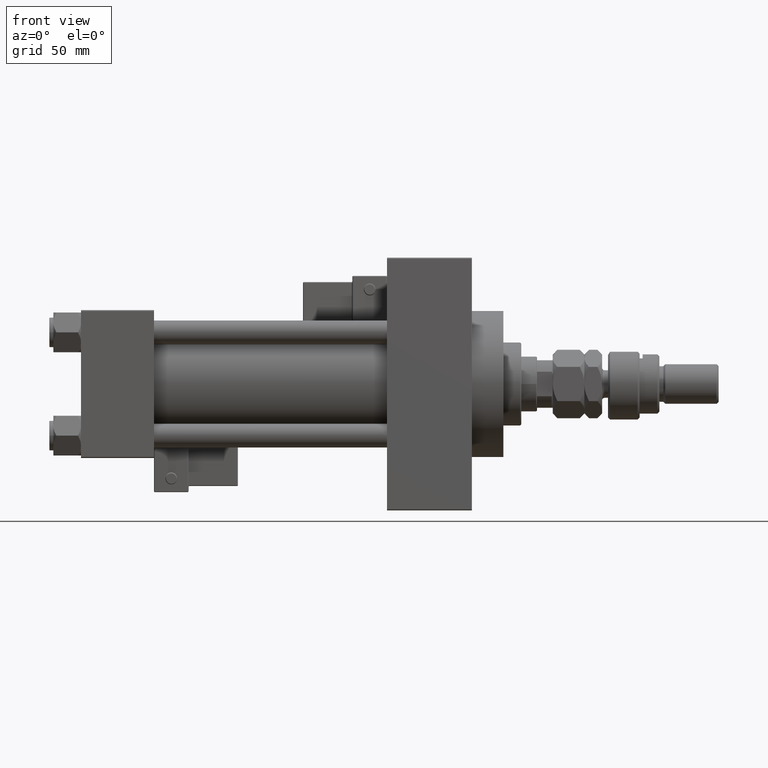
[diagram: clean part render]
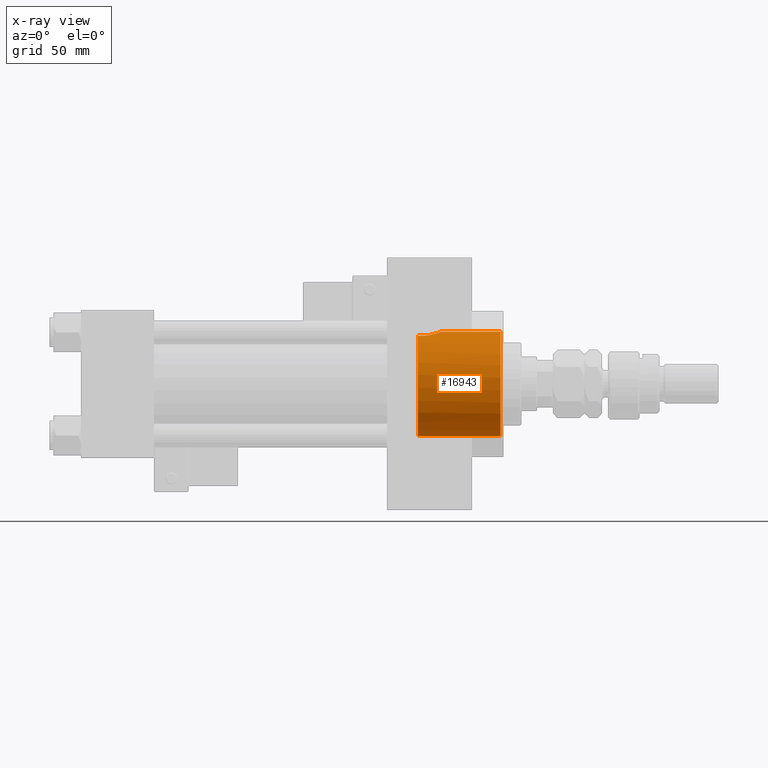
[diagram: x-ray — body ghosted, one internal face saturated and labeled with its STEP entity id]
A machine part, front view, then the same camera in x-ray: the body is ghosted and one INTERNAL B-rep face — a face not visible from any outside direction — is saturated and labeled: STEP entity #16943.
In plain terms, the highlighted cylindrical surface (partial cylindrical patch) has radius 26.5 mm, axis along (1, 0, 0).
Its self-contained STEP definition (entity closure, byte-faithful):
#639 = CARTESIAN_POINT ( 'NONE',  ( 170.7400000000000375, 3.245314017740486554E-15, 26.50000000000000355 ) ) ;
#1493 = DIRECTION ( 'NONE',  ( 0.000000000000000000, 0.000000000000000000, -1.000000000000000000 ) ) ;
#1683 = VECTOR ( 'NONE', #18283, 1000.000000000000000 ) ;
#1844 = CARTESIAN_POINT ( 'NONE',  ( 182.4011065554137758, -1.483758503940585172, 26.46850309434598714 ) ) ;
#2095 = CARTESIAN_POINT ( 'NONE',  ( 178.3983008714430980, -8.308216825530738703, 25.16494175890557017 ) ) ;
#2600 = CARTESIAN_POINT ( 'NONE',  ( 212.5000000000000853, 0.000000000000000000, -26.50000000000000355 ) ) ;
#3208 = ORIENTED_EDGE ( 'NONE', *, *, #35002, .F. ) ;
#6087 = CARTESIAN_POINT ( 'NONE',  ( 170.7400000000000375, -10.40398000767014430, 24.37226292324945476 ) ) ;
#6336 = CARTESIAN_POINT ( 'NONE',  ( 181.3963988635402700, -4.655434592126335147, 26.09007526830298929 ) ) ;
#6568 = CARTESIAN_POINT ( 'NONE',  ( 170.7400000000000375, 0.000000000000000000, -26.50000000000000355 ) ) ;
#6869 = CARTESIAN_POINT ( 'NONE',  ( 173.7216423275559407, -10.36418010715236626, 24.38933169417625990 ) ) ;
#8022 = CARTESIAN_POINT ( 'NONE',  ( 182.4800000000001319, 1.369086091260426415E-14, 26.50000000000006750 ) ) ;
#8075 = DIRECTION ( 'NONE',  ( 1.000000000000000000, -0.000000000000000000, -0.000000000000000000 ) ) ;
#10078 = CARTESIAN_POINT ( 'NONE',  ( 172.2451057705677329, -10.50334255171939901, 24.32972513250578928 ) ) ;
#10577 = CARTESIAN_POINT ( 'NONE',  ( 182.0665133812162821, -2.938253791439155549, 26.33899517628734799 ) ) ;
#11169 = CARTESIAN_POINT ( 'NONE',  ( 212.5000000000000853, 3.245314017740486554E-15, 26.50000000000000355 ) ) ;
#12139 = VERTEX_POINT ( 'NONE', #40055 ) ;
#12553 = B_SPLINE_CURVE_WITH_KNOTS ( 'NONE', 3,
 ( #8022, #19075, #1844, #30507, #10577, #46901, #35255, #6336, #18291, #50639, #31277, #26267, #15099, #46403, #2095, #18043, #27303, #50366, #22549, #50900, #38453, #43205, #6869, #10078, #18563, #6087 ),
 .UNSPECIFIED., .F., .F.,
 ( 4, 2, 2, 2, 2, 2, 2, 2, 2, 2, 2, 2, 4 ),
 ( 0.01781170071191069335, 0.02003745927526334042, 0.02115033855693966569, 0.02226321783861599096, 0.02337609712029231276, 0.02448897640196863804, 0.02671473496532128511, 0.02782761424699763814, 0.02894049352867399116, 0.03005337281035034419, 0.03116625209202669722, 0.03339201065537940327, 0.03561776921873211627 ),
 .UNSPECIFIED. ) ;
#12759 = CARTESIAN_POINT ( 'NONE',  ( 170.7400000000000375, 0.000000000000000000, 0.000000000000000000 ) ) ;
#12866 = EDGE_CURVE ( 'NONE', #45082, #22872, #32199, .T. ) ;
#13429 = EDGE_CURVE ( 'NONE', #33176, #26176, #17811, .T. ) ;
#15099 = CARTESIAN_POINT ( 'NONE',  ( 179.5076201536012377, -7.348534936426533548, 25.46581292754185100 ) ) ;
#16066 = EDGE_CURVE ( 'NONE', #22872, #26176, #27031, .T. ) ;
#16943 = ADVANCED_FACE ( 'NONE', ( #49064 ), #45084, .F. ) ;
#17811 = CIRCLE ( 'NONE', #24597, 26.50000000000000355 ) ;
#18043 = CARTESIAN_POINT ( 'NONE',  ( 177.8022832347253939, -8.734885810676990658, 25.02004257437575063 ) ) ;
#18283 = DIRECTION ( 'NONE',  ( 1.000000000000000000, -0.000000000000000000, -0.000000000000000000 ) ) ;
#18291 = CARTESIAN_POINT ( 'NONE',  ( 181.2276638786152319, -4.981583166679941499, 26.02957788900646108 ) ) ;
#18563 = CARTESIAN_POINT ( 'NONE',  ( 171.4868983507928135, -10.49443499905853905, 24.33364968799253347 ) ) ;
#19075 = CARTESIAN_POINT ( 'NONE',  ( 182.4800000000000182, -0.7466733969459918852, 26.50000000000001776 ) ) ;
#20249 = ORIENTED_EDGE ( 'NONE', *, *, #13429, .T. ) ;
#22549 = CARTESIAN_POINT ( 'NONE',  ( 176.5335921408433535, -9.455792512420336138, 24.75606841526505875 ) ) ;
#22872 = VERTEX_POINT ( 'NONE', #6568 ) ;
#23759 = AXIS2_PLACEMENT_3D ( 'NONE', #29035, #25321, #41493 ) ;
#24597 = AXIS2_PLACEMENT_3D ( 'NONE', #45798, #49770, #1493 ) ;
#25066 = LINE ( 'NONE', #639, #51450 ) ;
#25321 = DIRECTION ( 'NONE',  ( 1.000000000000000000, 0.000000000000000000, 0.000000000000000000 ) ) ;
#26176 = VERTEX_POINT ( 'NONE', #2600 ) ;
#26267 = CARTESIAN_POINT ( 'NONE',  ( 179.9981355541606547, -6.811571481472467937, 25.61680511670813942 ) ) ;
#27031 = LINE ( 'NONE', #38966, #1683 ) ;
#27303 = CARTESIAN_POINT ( 'NONE',  ( 177.4947120380321337, -8.931495953537138988, 24.95025484238639990 ) ) ;
#28153 = EDGE_LOOP ( 'NONE', ( #3208, #36158, #20249, #35772, #33401 ) ) ;
#29035 = CARTESIAN_POINT ( 'NONE',  ( 170.7400000000000375, 0.000000000000000000, 0.000000000000000000 ) ) ;
#30507 = CARTESIAN_POINT ( 'NONE',  ( 182.1654842721632974, -2.575241489874368739, 26.37710048711162614 ) ) ;
#31277 = CARTESIAN_POINT ( 'NONE',  ( 180.6508763872860754, -5.926808359427492512, 25.83050513016100425 ) ) ;
#32199 = CIRCLE ( 'NONE', #23759, 26.50000000000000355 ) ;
#32225 = AXIS2_PLACEMENT_3D ( 'NONE', #12759, #39823, #40335 ) ;
#33176 = VERTEX_POINT ( 'NONE', #11169 ) ;
#33401 = ORIENTED_EDGE ( 'NONE', *, *, #12866, .F. ) ;
#35002 = EDGE_CURVE ( 'NONE', #12139, #45082, #12553, .T. ) ;
#35255 = CARTESIAN_POINT ( 'NONE',  ( 181.6993435614955672, -3.985990130492280237, 26.20070574291653998 ) ) ;
#35772 = ORIENTED_EDGE ( 'NONE', *, *, #16066, .F. ) ;
#36158 = ORIENTED_EDGE ( 'NONE', *, *, #50206, .T. ) ;
#38453 = CARTESIAN_POINT ( 'NONE',  ( 175.5115735695665080, -9.881194972351261541, 24.58915736193083390 ) ) ;
#38966 = CARTESIAN_POINT ( 'NONE',  ( 170.7400000000000375, 0.000000000000000000, -26.50000000000000355 ) ) ;
#39823 = DIRECTION ( 'NONE',  ( 1.000000000000000000, -0.000000000000000000, -0.000000000000000000 ) ) ;
#40055 = CARTESIAN_POINT ( 'NONE',  ( 182.4800000000001319, 1.369086091260426415E-14, 26.50000000000006750 ) ) ;
#40335 = DIRECTION ( 'NONE',  ( 0.000000000000000000, 0.000000000000000000, -1.000000000000000000 ) ) ;
#41493 = DIRECTION ( 'NONE',  ( 0.000000000000000000, 0.000000000000000000, -1.000000000000000000 ) ) ;
#43205 = CARTESIAN_POINT ( 'NONE',  ( 174.4459359432478891, -10.21777125531389707, 24.45211332338677579 ) ) ;
#45082 = VERTEX_POINT ( 'NONE', #51619 ) ;
#45084 = CYLINDRICAL_SURFACE ( 'NONE', #32225, 26.50000000000000355 ) ;
#45798 = CARTESIAN_POINT ( 'NONE',  ( 212.5000000000000853, 0.000000000000000000, 0.000000000000000000 ) ) ;
#46403 = CARTESIAN_POINT ( 'NONE',  ( 178.6874981071936759, -8.077221093107556982, 25.24030799844107520 ) ) ;
#46901 = CARTESIAN_POINT ( 'NONE',  ( 181.8335546017134448, -3.642695553053282520, 26.25084325021122922 ) ) ;
#49064 = FACE_OUTER_BOUND ( 'NONE', #28153, .T. ) ;
#49770 = DIRECTION ( 'NONE',  ( 1.000000000000000000, 0.000000000000000000, 0.000000000000000000 ) ) ;
#50206 = EDGE_CURVE ( 'NONE', #12139, #33176, #25066, .T. ) ;
#50366 = CARTESIAN_POINT ( 'NONE',  ( 176.8603660912149564, -9.291949300782537335, 24.81826977973610227 ) ) ;
#50639 = CARTESIAN_POINT ( 'NONE',  ( 180.8553297434205831, -5.616857363200481679, 25.89992295911057596 ) ) ;
#50900 = CARTESIAN_POINT ( 'NONE',  ( 175.8600678267364401, -9.750145953289923284, 24.64162310621549423 ) ) ;
#51450 = VECTOR ( 'NONE', #8075, 1000.000000000000000 ) ;
#51619 = CARTESIAN_POINT ( 'NONE',  ( 170.7400000000000375, -10.40398000767014430, 24.37226292324945476 ) ) ;